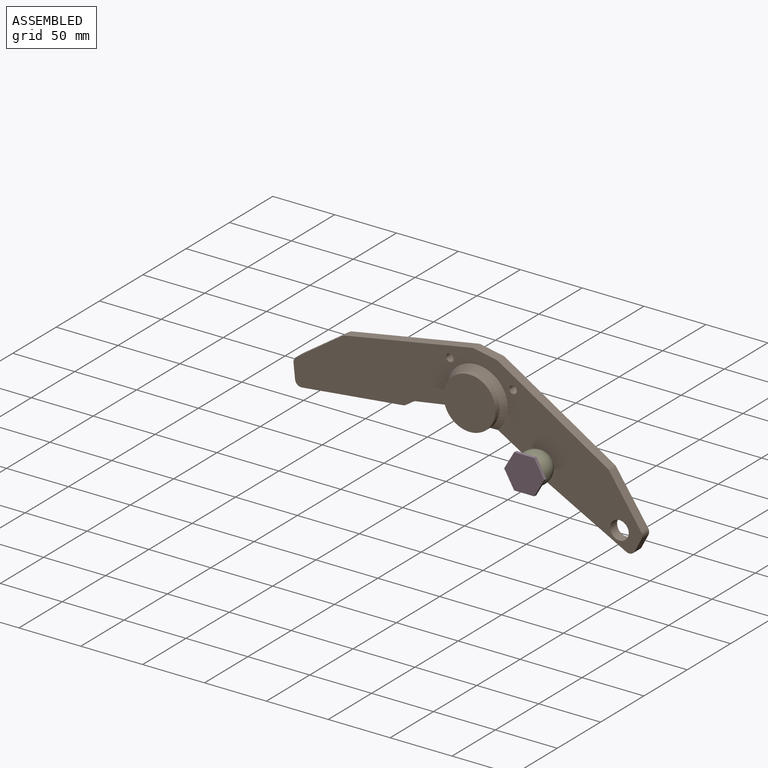
[diagram: assembled view]
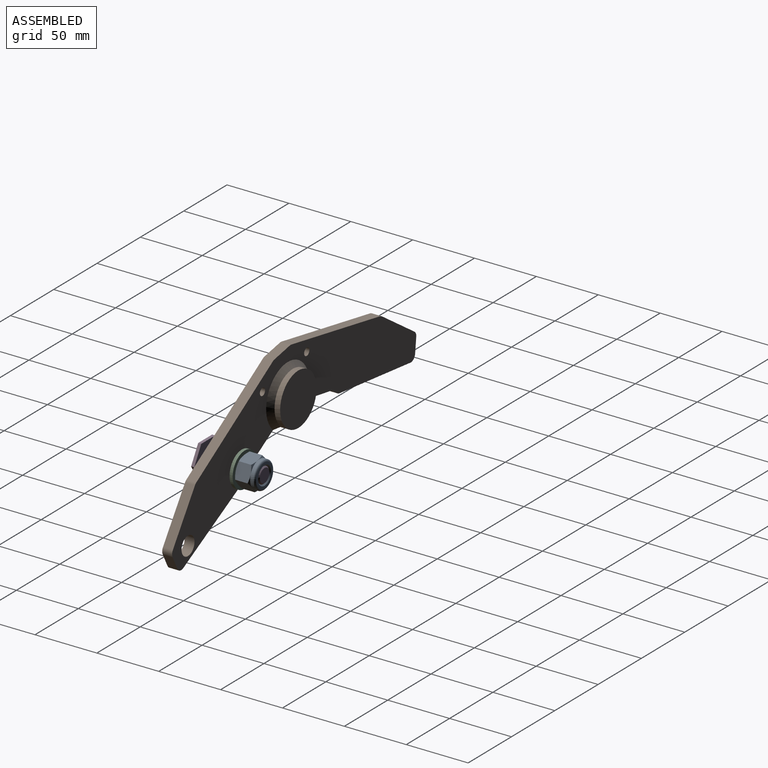
[diagram: assembled view, second angle]
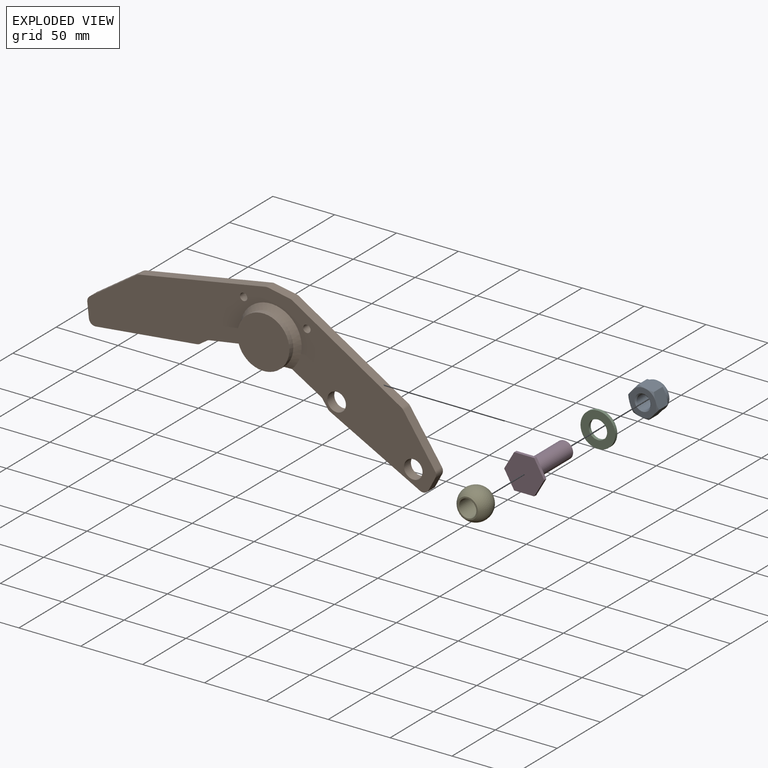
[diagram: exploded view]
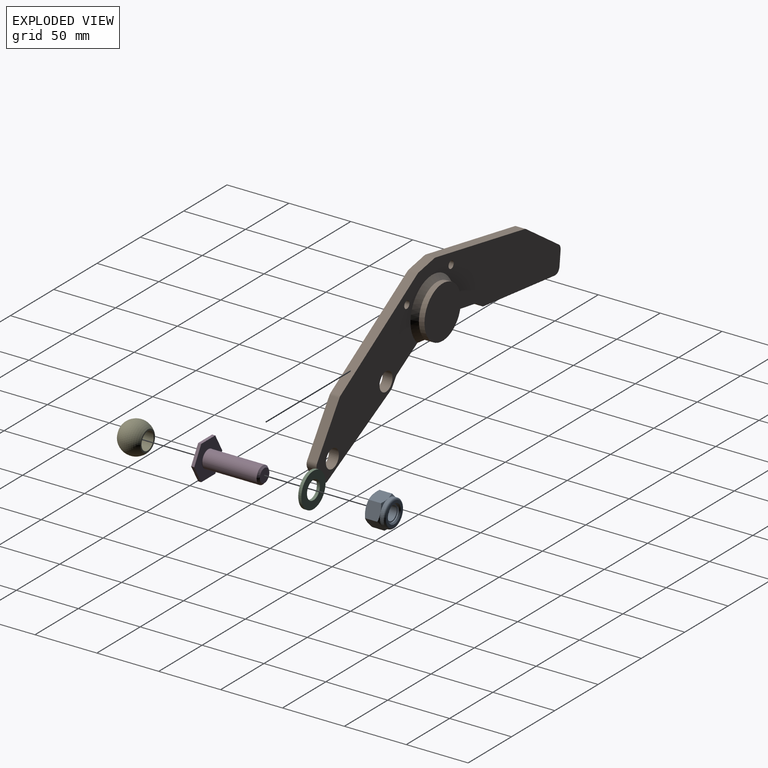
[diagram: exploded view, second angle]
ASSEMBLY  parts=5 mates=7
PART A: 27 faces, bbox 25.4x25.4x16 mm
  f0: cylinder r=6.5mm len=13mm, axis (0,0,-1), area 40.8mm2, adj f1,f25
  f1: plane 13x13mm, normal (0,0,1), area 34.2mm2, adj f0,f2
  f2: cylinder r=5.6mm len=13mm, axis (0,0,-1), area 457.4mm2, adj f1,f24
  f3: plane 22x22mm, normal (0,0,-1), area 243.3mm2, adj f5,f6,f14,f15,f16,f17,f24
  f4: plane 19x19mm, normal (0,0,1), area 106.8mm2, adj f25,f26
  f5: cone r=12.7mm half-angle=60deg, axis (0,0,1), area 7.5mm2, adj f3,f18,f23
  f6: cone r=12.7mm half-angle=60deg, axis (0,0,1), area 7.5mm2, adj f3,f22,f23
  f7: cone r=12.7mm half-angle=60deg, axis (0,0,-1), area 7.5mm2, adj f13,f19,f20
  f8: cone r=12.7mm half-angle=60deg, axis (0,0,-1), area 7.5mm2, adj f13,f18,f19
  f9: cone r=12.7mm half-angle=60deg, axis (0,0,-1), area 7.5mm2, adj f13,f22,f23
  f10: cone r=12.7mm half-angle=60deg, axis (0,0,-1), area 7.5mm2, adj f13,f21,f22
  f11: cone r=12.7mm half-angle=60deg, axis (0,0,-1), area 7.5mm2, adj f13,f20,f21
  f12: cone r=12.7mm half-angle=60deg, axis (0,0,-1), area 7.5mm2, adj f13,f18,f23
  f13: cylinder r=11mm len=22mm, axis (0,0,-1), area 172.8mm2, adj f7,f8,f9,f10,f11,f12,f26
  f14: cone r=12.7mm half-angle=60deg, axis (0,0,1), area 7.5mm2, adj f3,f21,f22
  f15: cone r=12.7mm half-angle=60deg, axis (0,0,1), area 7.5mm2, adj f3,f20,f21
  f16: cone r=12.7mm half-angle=60deg, axis (0,0,1), area 7.5mm2, adj f3,f19,f20
  f17: cone r=12.7mm half-angle=60deg, axis (0,0,1), area 7.5mm2, adj f3,f18,f19
  f18: plane 12.01x11mm, normal (0.87,0.5,0), area 143.9mm2, adj f5,f8,f12,f17,f19,f23
  f19: plane 12.71x12.01mm, normal (0,1,0), area 143.9mm2, adj f7,f8,f16,f17,f18,f20
  f20: plane 12.01x11mm, normal (-0.87,0.5,0), area 143.9mm2, adj f7,f11,f15,f16,f19,f21
  f21: plane 12.01x11mm, normal (-0.87,-0.5,0), area 143.9mm2, adj f10,f11,f14,f15,f20,f22
  f22: plane 12.71x12.01mm, normal (0,-1,0), area 143.9mm2, adj f6,f9,f10,f14,f21,f23
  f23: plane 12.01x11mm, normal (0.87,-0.5,0), area 143.9mm2, adj f5,f6,f9,f12,f18,f22
  f24: cone r=5.6mm half-angle=45deg, axis (0,0,-1), area 54.2mm2, adj f2,f3
  f25: cone r=7.5mm half-angle=45deg, axis (0,0,1), area 62.2mm2, adj f0,f4
  f26: torus R=9.5mm, axis (0,0,1), area 154.8mm2, adj f4,f13
PART B: 36 faces, bbox 286.7x25x90.8 mm
  f0: cylinder r=21mm len=42mm, axis (0,1,0), area 1782.2mm2, adj f1,f2,f10,f11,f34,f35
  f1: plane 42x42mm, normal (0,-1,0), area 1385.4mm2, adj f0
  f2: plane 42x42mm, normal (0,1,0), area 1385.4mm2, adj f0
  f3: plane 286.68x90.76mm, normal (0,-1,0), area 10358mm2, adj f4,f5,f6,f7,f8,f9,f10,f11
  f4: plane 18.15x8mm, normal (0,0,1), area 145.2mm2, adj f3,f21,f22,f33
  f5: plane 97.15x37.29mm, normal (-0.36,0,0.93), area 832.5mm2, adj f3,f21,f22,f23
  f6: plane 32.12x32.12mm, normal (-0.71,0,0.71), area 363.4mm2, adj f3,f21,f23,f24
  f7: plane 11.35x8mm, normal (-0.96,0,-0.29), area 94.9mm2, adj f3,f21,f24,f25
  f8: plane 78.72x24.07mm, normal (0.29,0,-0.96), area 658.5mm2, adj f3,f21,f25,f26
  f9: plane 8x5.02mm, normal (0.71,0,-0.71), area 56.8mm2, adj f3,f21,f26,f27
  f10: plane 29.53x16mm, normal (0.34,0,-0.94), area 268.2mm2, adj f0,f3,f21,f27,f34,f35
  f11: plane 29.53x16mm, normal (-0.34,0,-0.94), area 268.2mm2, adj f0,f3,f21,f28,f34,f35
  f12: plane 8x5.02mm, normal (-0.71,0,-0.71), area 56.8mm2, adj f3,f21,f28,f29
  f13: plane 78.72x24.07mm, normal (-0.29,0,-0.96), area 658.5mm2, adj f3,f21,f29,f30
  f14: plane 11.35x8mm, normal (0.96,0,-0.29), area 94.9mm2, adj f3,f21,f30,f31
  f15: plane 32.12x32.12mm, normal (0.71,0,0.71), area 363.4mm2, adj f3,f21,f31,f32
  f16: cylinder r=3mm len=8mm, axis (0,1,0), area 150.8mm2, adj f3,f21
  f17: cylinder r=7.5mm len=15mm, axis (0,1,0), area 377mm2, adj f3,f21
  f18: cylinder r=7.5mm len=15mm, axis (0,1,0), area 377mm2, adj f3,f21
  f19: plane 97.15x37.29mm, normal (0.36,0,0.93), area 832.5mm2, adj f3,f21,f32,f33
  f20: cylinder r=3mm len=8mm, axis (0,1,0), area 150.8mm2, adj f3,f21
  f21: plane 286.68x90.76mm, normal (0,1,0), area 10358mm2, adj f4,f5,f6,f7,f8,f9,f10,f11
  f22: cylinder r=5mm len=8mm, axis (0,-1,0), area 14.7mm2, adj f3,f4,f5,f21
  f23: cylinder r=5mm len=8mm, axis (0,1,0), area 16.8mm2, adj f3,f5,f6,f21
  f24: cylinder r=5mm len=8mm, axis (0,1,0), area 43.3mm2, adj f3,f6,f7,f21
  f25: cylinder r=5mm len=8mm, axis (0,1,0), area 62.8mm2, adj f3,f7,f8,f21
  f26: cylinder r=5mm len=8mm, axis (0,-1,0), area 19.5mm2, adj f3,f8,f9,f21
  f27: cylinder r=5mm len=8mm, axis (0,-1,0), area 17.5mm2, adj f3,f9,f10,f21
  f28: cylinder r=5mm len=8mm, axis (0,-1,0), area 17.5mm2, adj f3,f11,f12,f21
  f29: cylinder r=5mm len=8mm, axis (0,-1,0), area 19.5mm2, adj f3,f12,f13,f21
  f30: cylinder r=5mm len=8mm, axis (0,1,0), area 62.8mm2, adj f3,f13,f14,f21
  f31: cylinder r=5mm len=8mm, axis (0,1,0), area 43.3mm2, adj f3,f14,f15,f21
  f32: cylinder r=5mm len=8mm, axis (0,1,0), area 16.8mm2, adj f3,f15,f19,f21
  f33: cylinder r=5mm len=8mm, axis (0,1,0), area 14.7mm2, adj f3,f4,f19,f21
  f34: cone r=25mm half-angle=45deg, axis (0,1,0), area 579.3mm2, adj f0,f3,f10,f11
  f35: cone r=25mm half-angle=45deg, axis (0,-1,0), area 579.3mm2, adj f0,f10,f11,f21
PART C: 4 faces, bbox 28x28x2.5 mm
  f0: cylinder r=7.5mm len=15mm, axis (0,0,-1), area 117.8mm2, adj f2,f3
  f1: cylinder r=14mm len=28mm, axis (0,0,-1), area 219.9mm2, adj f2,f3
  f2: plane 28x28mm, normal (0,0,1), area 439mm2, adj f0,f1
  f3: plane 28x28mm, normal (0,0,-1), area 439mm2, adj f0,f1
PART D: 13 faces, bbox 32.3x48x28 mm
  f0: cylinder r=7mm len=26.8mm, axis (0,-1,0), area 1178.7mm2, adj f9,f12
  f1: plane 14x8.08mm, normal (0.87,0,-0.5), area 40.4mm2, adj f2,f6,f7,f8
  f2: plane 14x8.08mm, normal (0.87,0,0.5), area 40.4mm2, adj f1,f3,f7,f8
  f3: plane 16.17x2.5mm, normal (0,0,1), area 40.4mm2, adj f2,f4,f7,f8
  f4: plane 14x8.08mm, normal (-0.87,0,0.5), area 40.4mm2, adj f3,f5,f7,f8
  f5: plane 14x8.08mm, normal (-0.87,0,-0.5), area 40.4mm2, adj f4,f6,f7,f8
  f6: plane 16.17x2.5mm, normal (0,0,-1), area 40.4mm2, adj f1,f5,f7,f8
  f7: plane 32.33x28mm, normal (0,-1,0), area 679mm2, adj f1,f2,f3,f4,f5,f6
  f8: plane 32.33x28mm, normal (0,1,0), area 516.1mm2, adj f1,f2,f3,f4,f5,f6,f12
  f9: cylinder r=7mm len=17mm, axis (0,-1,0), area 747.7mm2, adj f0,f11
  f10: plane 11x11mm, normal (0,1,0), area 95mm2, adj f11
  f11: cone r=5.5mm half-angle=45deg, axis (0,-1,0), area 83.3mm2, adj f9,f10
  f12: torus R=7.2mm, axis (0,-1,0), area 14mm2, adj f0,f8
PART E: 6 faces, bbox 25.4x19x25.4 mm
  f0: plane 16.86x16.86mm, normal (0,-1,0), area 55.8mm2, adj f3,f4
  f1: cylinder r=7mm len=18.4mm, axis (0,-1,0), area 809.3mm2, adj f4,f5
  f2: plane 16.86x16.86mm, normal (0,1,0), area 55.8mm2, adj f3,f5
  f3: sphere r=12.7mm, area 1516.1mm2, adj f0,f2
  f4: torus R=7.3mm, axis (0,-1,0), area 21mm2, adj f0,f1
  f5: torus R=7.3mm, axis (0,-1,0), area 21mm2, adj f1,f2
PLACE A rot(axis=(-0.99,0.09,0.09),90.5deg) t=(0,29.5,0)mm
PLACE B rot(axis=(0,1,0),10.8deg) t=(-53.22,23,32.68)mm
PLACE C rot(axis=(0.99,0.09,-0.09),90.5deg) t=(0,29.5,0)mm
PLACE D at identity fixed
PLACE E rot(axis=(0,1,0),10.8deg) t=(0,9.5,0)mm
MATE planar E.f1 <-> B.f3  axis (0,1,0) through (0,19,0)mm
MATE planar D.f0 <-> E.f1  axis (0,1,0) through (0,0,0)mm
MATE cylindrical E.f1 <-> D.f0  axis (0,-1,0) through (0,9.5,0)mm
MATE cylindrical C.f0 <-> D.f0  axis (0,-1,0) through (0,27,0)mm
MATE revolute A.f7 <-> C.f0  axis (0,-1,0) through (0,29.5,0)mm
MATE planar C.f0 <-> B.f21  axis (0,-1,0) through (0,27,0)mm
MATE cylindrical D.f0 <-> B.f18  axis (0,-1,0) through (0,35.5,0)mm
